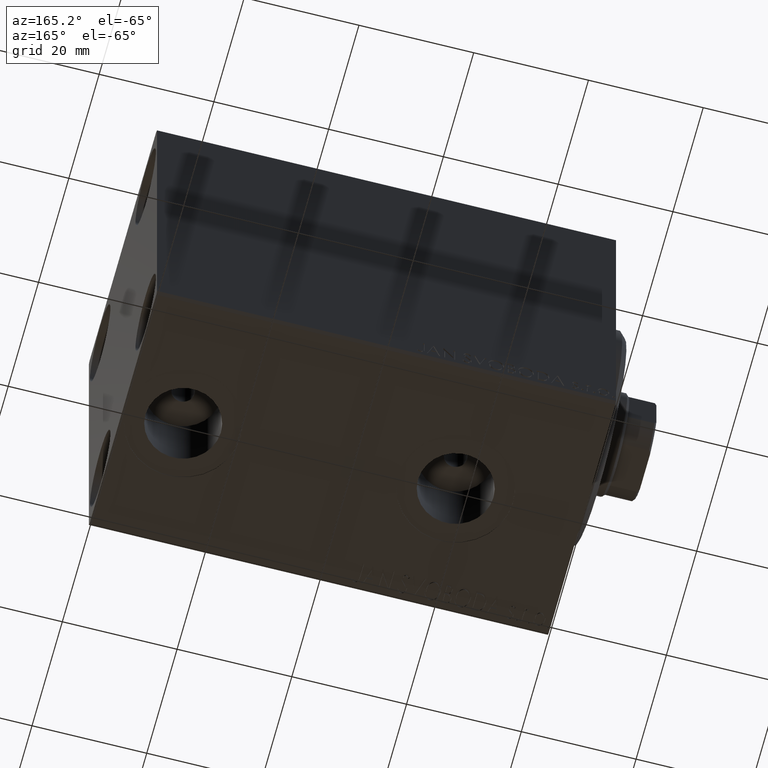
[diagram: clean part render]
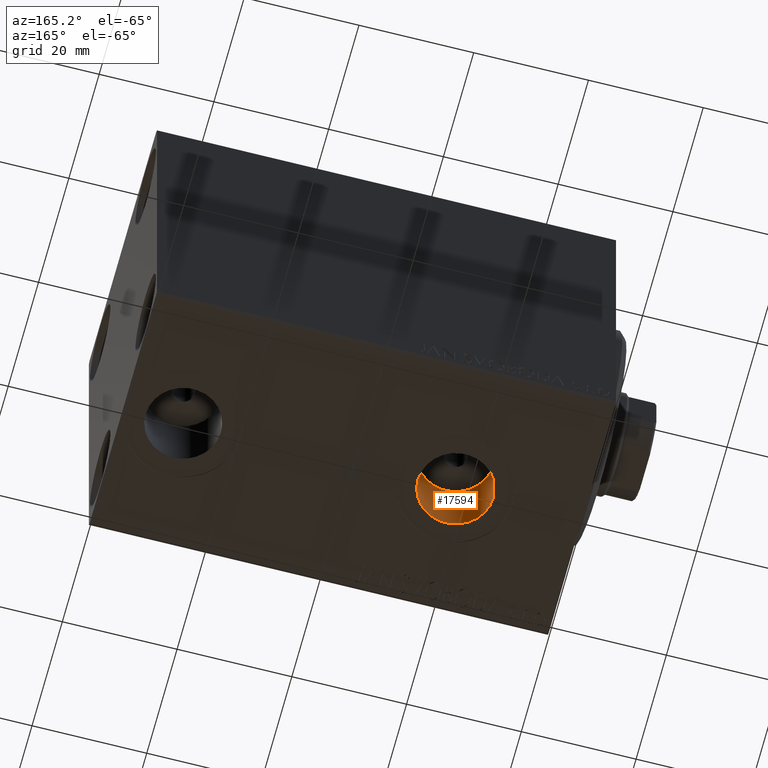
[diagram: same view with one face highlighted and labeled with its STEP entity id]
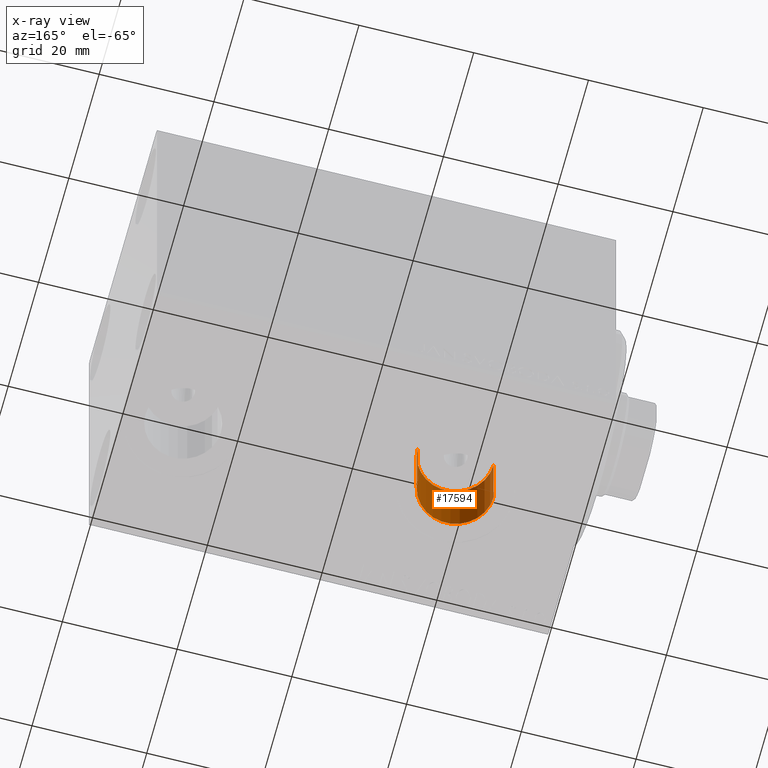
[diagram: x-ray of the same camera — body ghosted, the highlighted face saturated]
A machine part, auxiliary view. The second image highlights one B-rep face of the part: STEP entity #17594.
The next image is the same camera in x-ray: the body ghosted, the highlighted face saturated — about 0% of this face is hidden behind the body in this view.
In plain terms, the highlighted cylindrical surface (partial cylindrical patch) has radius 6.58 mm, axis along (-0, -0, -1).
Its self-contained STEP definition (entity closure, byte-faithful):
#1220 = CIRCLE ( 'NONE', #14240, 6.580000000000002736 ) ;
#1728 = DIRECTION ( 'NONE',  ( -0.000000000000000000, -0.000000000000000000, -1.000000000000000000 ) ) ;
#3414 = CARTESIAN_POINT ( 'NONE',  ( 22.00000000000000000, -3.594347949397319039E-15, -19.50000000000000355 ) ) ;
#4719 = DIRECTION ( 'NONE',  ( -1.000000000000000000, 0.000000000000000000, 0.000000000000000000 ) ) ;
#5835 = LINE ( 'NONE', #30495, #11348 ) ;
#6229 = EDGE_CURVE ( 'NONE', #25362, #18983, #7726, .T. ) ;
#7375 = ORIENTED_EDGE ( 'NONE', *, *, #26583, .F. ) ;
#7726 = CIRCLE ( 'NONE', #42012, 6.580000000000002736 ) ;
#8151 = DIRECTION ( 'NONE',  ( -0.000000000000000000, -0.000000000000000000, -1.000000000000000000 ) ) ;
#11348 = VECTOR ( 'NONE', #1728, 1000.000000000000000 ) ;
#11518 = CARTESIAN_POINT ( 'NONE',  ( 15.41999999999999638, -3.594347949397319039E-15, -32.40000000000000568 ) ) ;
#14240 = AXIS2_PLACEMENT_3D ( 'NONE', #40531, #34122, #37317 ) ;
#17324 = DIRECTION ( 'NONE',  ( 0.000000000000000000, 0.000000000000000000, -1.000000000000000000 ) ) ;
#17594 = ADVANCED_FACE ( 'NONE', ( #36011 ), #25716, .F. ) ;
#18983 = VERTEX_POINT ( 'NONE', #22332 ) ;
#22232 = CARTESIAN_POINT ( 'NONE',  ( 28.58000000000000185, -2.788530355558360786E-15, -32.40000000000000568 ) ) ;
#22332 = CARTESIAN_POINT ( 'NONE',  ( 15.41999999999999638, -3.594347949397319039E-15, -19.50000000000000355 ) ) ;
#25362 = VERTEX_POINT ( 'NONE', #38809 ) ;
#25716 = CYLINDRICAL_SURFACE ( 'NONE', #27588, 6.580000000000002736 ) ;
#25952 = ORIENTED_EDGE ( 'NONE', *, *, #6229, .F. ) ;
#26583 = EDGE_CURVE ( 'NONE', #18983, #37144, #5835, .T. ) ;
#26793 = ORIENTED_EDGE ( 'NONE', *, *, #29893, .T. ) ;
#26794 = CARTESIAN_POINT ( 'NONE',  ( 28.58000000000000185, -2.788530355558360786E-15, -19.50000000000000355 ) ) ;
#27588 = AXIS2_PLACEMENT_3D ( 'NONE', #39469, #8151, #4719 ) ;
#28696 = EDGE_CURVE ( 'NONE', #25362, #44621, #37086, .T. ) ;
#29893 = EDGE_CURVE ( 'NONE', #44621, #37144, #1220, .T. ) ;
#30495 = CARTESIAN_POINT ( 'NONE',  ( 15.41999999999999638, -3.594347949397319039E-15, -19.50000000000000355 ) ) ;
#31263 = DIRECTION ( 'NONE',  ( -1.000000000000000000, 0.000000000000000000, 0.000000000000000000 ) ) ;
#33879 = DIRECTION ( 'NONE',  ( -0.000000000000000000, -0.000000000000000000, -1.000000000000000000 ) ) ;
#34122 = DIRECTION ( 'NONE',  ( 0.000000000000000000, 0.000000000000000000, -1.000000000000000000 ) ) ;
#36011 = FACE_OUTER_BOUND ( 'NONE', #42118, .T. ) ;
#37086 = LINE ( 'NONE', #26794, #45013 ) ;
#37144 = VERTEX_POINT ( 'NONE', #11518 ) ;
#37317 = DIRECTION ( 'NONE',  ( -1.000000000000000000, 0.000000000000000000, 0.000000000000000000 ) ) ;
#38809 = CARTESIAN_POINT ( 'NONE',  ( 28.58000000000000185, -2.788530355558360786E-15, -19.50000000000000355 ) ) ;
#39469 = CARTESIAN_POINT ( 'NONE',  ( 22.00000000000000000, -3.594347949397319039E-15, -19.50000000000000355 ) ) ;
#40531 = CARTESIAN_POINT ( 'NONE',  ( 22.00000000000000000, -3.594347949397319039E-15, -32.40000000000000568 ) ) ;
#41456 = ORIENTED_EDGE ( 'NONE', *, *, #28696, .T. ) ;
#42012 = AXIS2_PLACEMENT_3D ( 'NONE', #3414, #17324, #31263 ) ;
#42118 = EDGE_LOOP ( 'NONE', ( #25952, #41456, #26793, #7375 ) ) ;
#44621 = VERTEX_POINT ( 'NONE', #22232 ) ;
#45013 = VECTOR ( 'NONE', #33879, 1000.000000000000000 ) ;